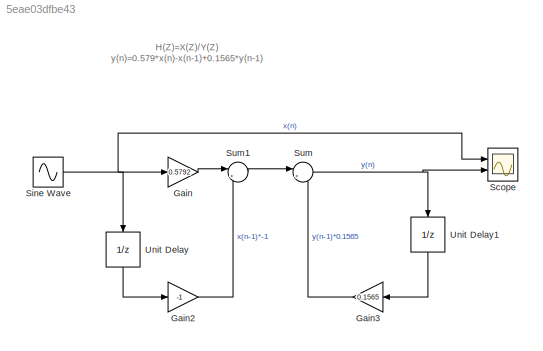
MODEL slx_5eae03dfbe43
KIND model
CONFIG AbsTol = auto
CONFIG EnableMultiTasking = off
CONFIG FixedStep = auto
CONFIG MaxStep = auto
CONFIG MinStep = auto
CONFIG RelTol = 1e-3
CONFIG SampleTimeConstraint = Unconstrained
CONFIG SolverName = VariableStepAuto
CONFIG StartTime = 0.0
CONFIG StopTime = 10.0
BLOCK [Gain]   Gain2
  Gain = -1
BLOCK [Gain]  Gain
  Gain = 0.5792
BLOCK [Gain]  Gain3
  Gain = 0.1565
  NameLocation = top
BLOCK [Sin]  Sine Wave
  Frequency = 7000*6.28
  Ports = [0, 1]
  SampleTime = 0
BLOCK [UnitDelay]  Unit Delay
  HasFrameUpgradeWarning = on
  NameLocation = left
  SampleTime = -1
BLOCK [UnitDelay]  Unit Delay1
  HasFrameUpgradeWarning = on
  NameLocation = left
  SampleTime = -1
BLOCK [Scope] Scope
  Floating = off
  NumInputPorts = 2
  Ports = [2]
  ScopeSpecificationString = Simulink.scopes.TimeScopeBlockCfg('CurrentConfiguration', extmgr.ConfigurationSet(extmgr.Configuration('Core','General UI',true),extmgr.Configuration('Core','Source UI',true),extmgr.Configuration('Sources','WiredSimulink',true),extmgr.Configuration('Visuals','Time Domain',true,'SerializedDisplays',{struct('MinYLimReal','-1.25','MaxYLimReal','1.25','YLabelReal','','MinYLimMag','0.00000','MaxYLimMag...<+1970ch>
BLOCK [Sum] Sum
  Inputs = |++
  Ports = [2, 1]
BLOCK [Sum] Sum1
  Inputs = |++
  Ports = [2, 1]
ANNOTATION (root): H(Z)=X(Z)/Y(Z) y(n)=0.579*x(n)-x(n-1)+0.1565*y(n-1)
LINE   Gain2:1 -> Sum1:2
LINE  Gain3:1 -> Sum:2
LINE  Gain:1 -> Sum1:1
NET  Sine Wave:1 ->  Gain:1,  Unit Delay:1, Scope:1
LINE  Unit Delay1:1 ->  Gain3:1
LINE  Unit Delay:1 ->   Gain2:1
LINE Sum1:1 -> Sum:1
NET Sum:1 ->  Unit Delay1:1, Scope:2
note: NET lines group one-source signal fan-out (src -> all destinations, sorted); 1:1 wires keep LINE
